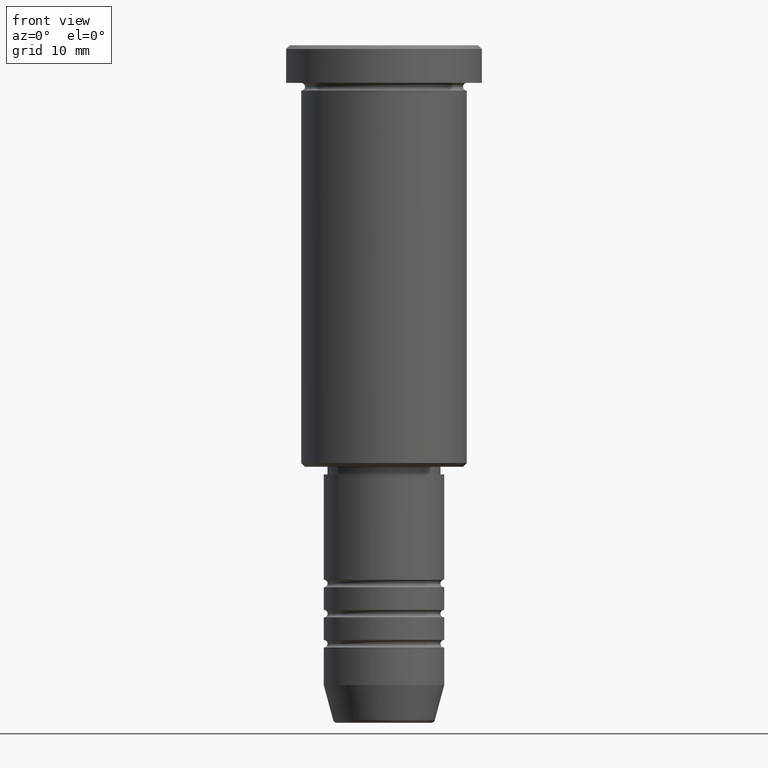
[diagram: clean part render]
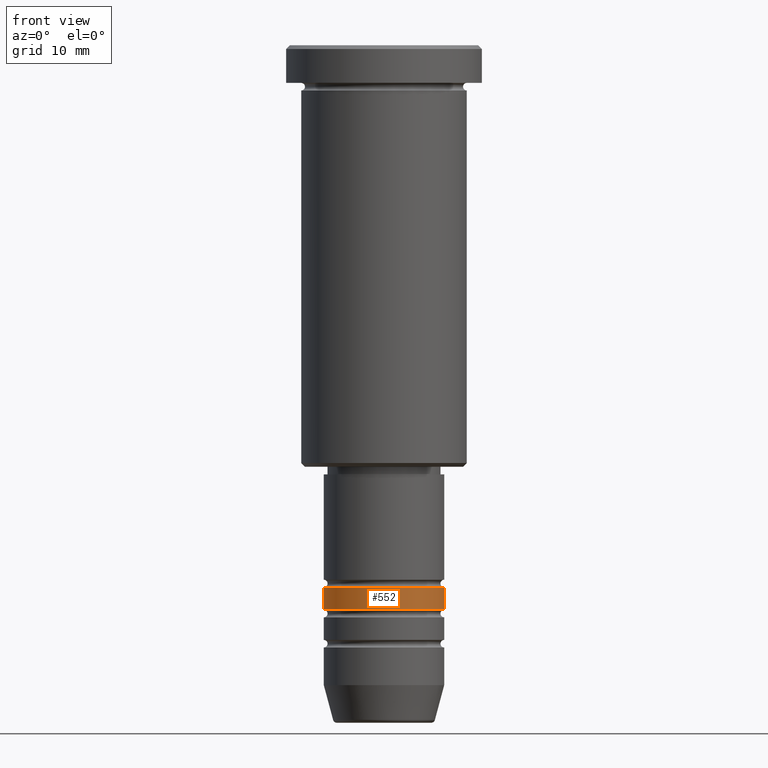
[diagram: same view with one face highlighted and labeled with its STEP entity id]
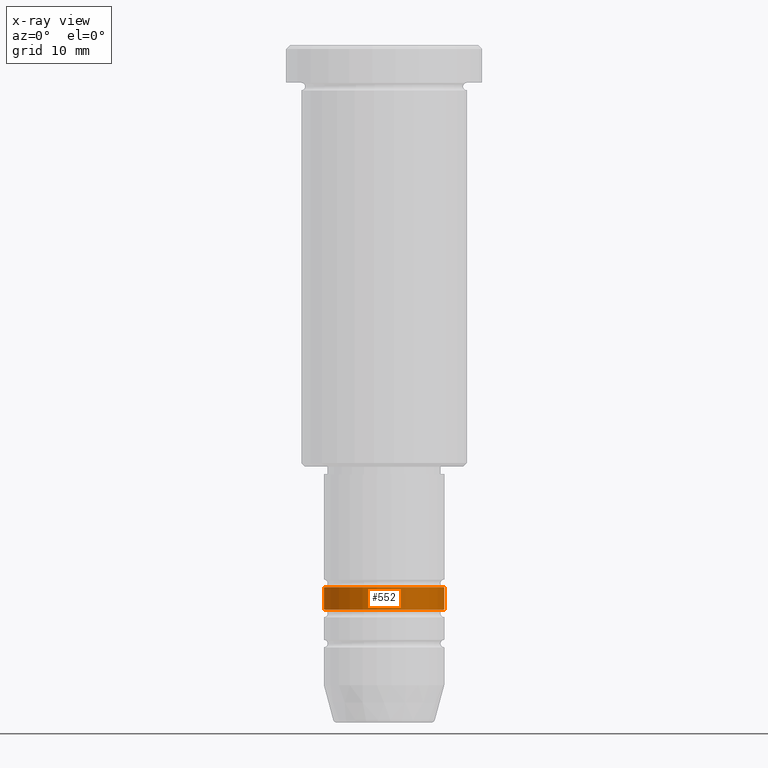
[diagram: x-ray of the same camera — body ghosted, the highlighted face saturated]
A machine part, front view. The second image highlights one B-rep face of the part: STEP entity #552.
The next image is the same camera in x-ray: the body ghosted, the highlighted face saturated — about 0% of this face is hidden behind the body in this view.
In plain terms, the highlighted cylindrical surface (partial cylindrical patch) has radius 8 mm, axis along (-0, -0, 1).
Its self-contained STEP definition (entity closure, byte-faithful):
#2 = ORIENTED_EDGE ( 'NONE', *, *, #194, .T. ) ;
#28 = CARTESIAN_POINT ( 'NONE',  ( -8.000000000000000000, 9.797174393178827630E-16, -71.99999999999998579 ) ) ;
#93 = EDGE_CURVE ( 'NONE', #763, #673, #720, .T. ) ;
#103 = CARTESIAN_POINT ( 'NONE',  ( 8.000000000000003553, 0.000000000000000000, -74.99999999999998579 ) ) ;
#144 = CARTESIAN_POINT ( 'NONE',  ( 8.000000000000000000, 0.000000000000000000, -71.99999999999998579 ) ) ;
#154 = AXIS2_PLACEMENT_3D ( 'NONE', #368, #475, #759 ) ;
#164 = EDGE_LOOP ( 'NONE', ( #827, #271, #2, #334 ) ) ;
#167 = DIRECTION ( 'NONE',  ( -0.000000000000000000, -0.000000000000000000, 1.000000000000000000 ) ) ;
#183 = FACE_OUTER_BOUND ( 'NONE', #164, .T. ) ;
#189 = AXIS2_PLACEMENT_3D ( 'NONE', #412, #432, #1149 ) ;
#194 = EDGE_CURVE ( 'NONE', #652, #435, #203, .T. ) ;
#203 = LINE ( 'NONE', #307, #441 ) ;
#247 = AXIS2_PLACEMENT_3D ( 'NONE', #532, #167, #1078 ) ;
#271 = ORIENTED_EDGE ( 'NONE', *, *, #1150, .T. ) ;
#307 = CARTESIAN_POINT ( 'NONE',  ( 8.000000000000001776, 0.000000000000000000, 0.000000000000000000 ) ) ;
#334 = ORIENTED_EDGE ( 'NONE', *, *, #436, .F. ) ;
#368 = CARTESIAN_POINT ( 'NONE',  ( 0.000000000000000000, 0.000000000000000000, -74.99999999999998579 ) ) ;
#386 = CARTESIAN_POINT ( 'NONE',  ( -8.000000000000003553, 9.797174393178829602E-16, -74.99999999999998579 ) ) ;
#412 = CARTESIAN_POINT ( 'NONE',  ( 0.000000000000000000, 0.000000000000000000, -71.99999999999998579 ) ) ;
#432 = DIRECTION ( 'NONE',  ( -0.000000000000000000, -0.000000000000000000, 1.000000000000000000 ) ) ;
#435 = VERTEX_POINT ( 'NONE', #144 ) ;
#436 = EDGE_CURVE ( 'NONE', #673, #435, #481, .T. ) ;
#441 = VECTOR ( 'NONE', #943, 1000.000000000000000 ) ;
#475 = DIRECTION ( 'NONE',  ( -0.000000000000000000, -0.000000000000000000, 1.000000000000000000 ) ) ;
#481 = CIRCLE ( 'NONE', #189, 8.000000000000000000 ) ;
#532 = CARTESIAN_POINT ( 'NONE',  ( 0.000000000000000000, 0.000000000000000000, 0.000000000000000000 ) ) ;
#552 = ADVANCED_FACE ( 'NONE', ( #183 ), #726, .T. ) ;
#593 = VECTOR ( 'NONE', #794, 1000.000000000000000 ) ;
#652 = VERTEX_POINT ( 'NONE', #103 ) ;
#657 = CIRCLE ( 'NONE', #154, 8.000000000000003553 ) ;
#673 = VERTEX_POINT ( 'NONE', #28 ) ;
#715 = CARTESIAN_POINT ( 'NONE',  ( -8.000000000000001776, 9.797174393178827630E-16, 0.000000000000000000 ) ) ;
#720 = LINE ( 'NONE', #715, #593 ) ;
#726 = CYLINDRICAL_SURFACE ( 'NONE', #247, 8.000000000000001776 ) ;
#759 = DIRECTION ( 'NONE',  ( 1.000000000000000000, 0.000000000000000000, 0.000000000000000000 ) ) ;
#763 = VERTEX_POINT ( 'NONE', #386 ) ;
#794 = DIRECTION ( 'NONE',  ( -0.000000000000000000, -0.000000000000000000, 1.000000000000000000 ) ) ;
#827 = ORIENTED_EDGE ( 'NONE', *, *, #93, .F. ) ;
#943 = DIRECTION ( 'NONE',  ( -0.000000000000000000, -0.000000000000000000, 1.000000000000000000 ) ) ;
#1078 = DIRECTION ( 'NONE',  ( 1.000000000000000000, 0.000000000000000000, 0.000000000000000000 ) ) ;
#1149 = DIRECTION ( 'NONE',  ( 1.000000000000000000, 0.000000000000000000, 0.000000000000000000 ) ) ;
#1150 = EDGE_CURVE ( 'NONE', #763, #652, #657, .T. ) ;